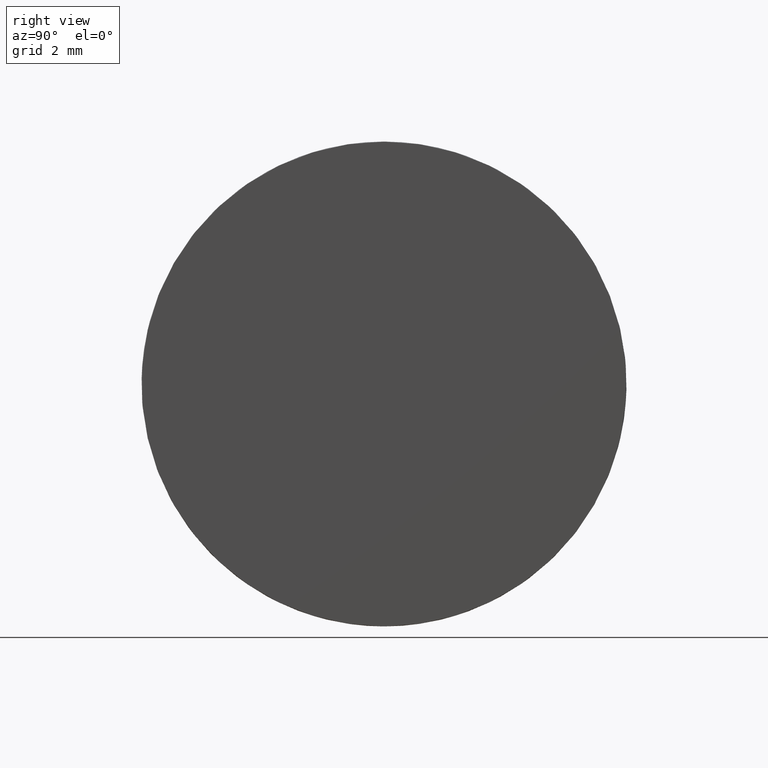
[diagram: clean part render]
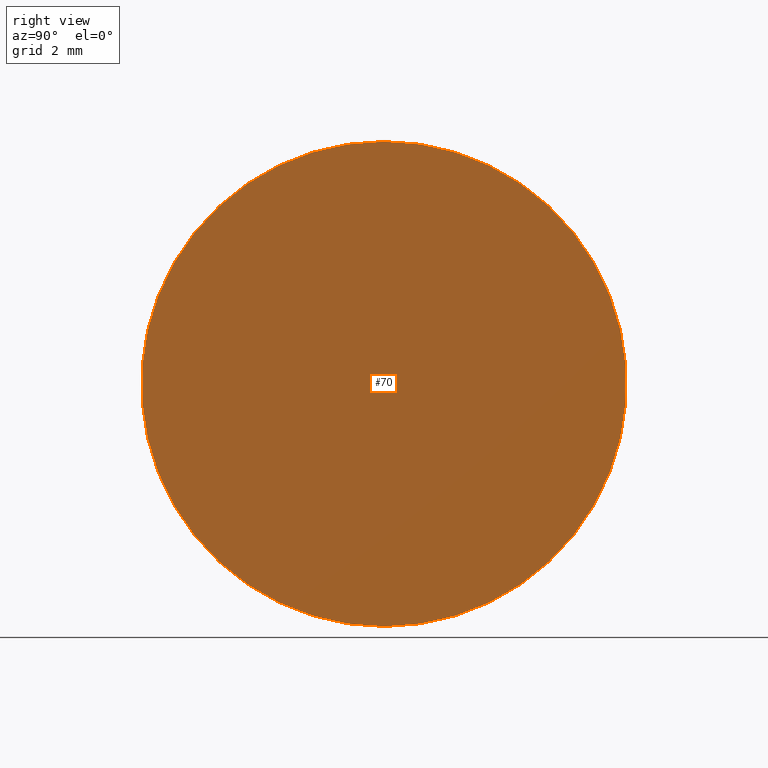
[diagram: same view with one face highlighted and labeled with its STEP entity id]
A machine part, right view. The second image highlights one B-rep face of the part: STEP entity #70.
In plain terms, the highlighted planar face has unit normal (1, 0, -0).
Its self-contained STEP definition (entity closure, byte-faithful):
#28 = DIRECTION ( 'NONE',  ( 1.000000000000000000, 0.0000000000000000000, -2.497546408665960700E-016 ) ) ;
#37 = CIRCLE ( 'NONE', #69, 6.250000000000000000 ) ;
#50 = EDGE_CURVE ( 'NONE', #176, #153, #63, .T. ) ;
#59 = EDGE_CURVE ( 'NONE', #153, #176, #37, .T. ) ;
#61 = ORIENTED_EDGE ( 'NONE', *, *, #59, .T. ) ;
#63 = CIRCLE ( 'NONE', #64, 6.250000000000000000 ) ;
#64 = AXIS2_PLACEMENT_3D ( 'NONE', #147, #28, #138 ) ;
#69 = AXIS2_PLACEMENT_3D ( 'NONE', #183, #227, #72 ) ;
#70 = ADVANCED_FACE ( 'NONE', ( #102 ), #222, .T. ) ;
#72 = DIRECTION ( 'NONE',  ( -2.775557561562891400E-016, 0.0000000000000000000, -1.000000000000000000 ) ) ;
#102 = FACE_OUTER_BOUND ( 'NONE', #117, .T. ) ;
#107 = CARTESIAN_POINT ( 'NONE',  ( 4.365204334851267900, 6.250000000000000900, 6.249999999999994700 ) ) ;
#117 = EDGE_LOOP ( 'NONE', ( #61, #223 ) ) ;
#124 = DIRECTION ( 'NONE',  ( -2.775557561562888400E-016, 0.0000000000000000000, -1.000000000000000000 ) ) ;
#138 = DIRECTION ( 'NONE',  ( -2.775557561562891400E-016, 0.0000000000000000000, -1.000000000000000000 ) ) ;
#143 = CARTESIAN_POINT ( 'NONE',  ( 4.365204334851264400, 12.50000000000000000, -6.250000000000012400 ) ) ;
#147 = CARTESIAN_POINT ( 'NONE',  ( 4.365204334851266100, 6.250000000000000000, -6.415758017866774500E-015 ) ) ;
#153 = VERTEX_POINT ( 'NONE', #172 ) ;
#172 = CARTESIAN_POINT ( 'NONE',  ( 4.365204334851264400, 6.250000000000000000, -6.250000000000006200 ) ) ;
#176 = VERTEX_POINT ( 'NONE', #107 ) ;
#183 = CARTESIAN_POINT ( 'NONE',  ( 4.365204334851266100, 6.250000000000000000, -6.415758017866774500E-015 ) ) ;
#209 = AXIS2_PLACEMENT_3D ( 'NONE', #143, #226, #124 ) ;
#222 = PLANE ( 'NONE',  #209 ) ;
#223 = ORIENTED_EDGE ( 'NONE', *, *, #50, .T. ) ;
#226 = DIRECTION ( 'NONE',  ( 1.000000000000000000, 0.0000000000000000000, -2.775557561562888400E-016 ) ) ;
#227 = DIRECTION ( 'NONE',  ( 1.000000000000000000, 0.0000000000000000000, -2.497546408665960700E-016 ) ) ;